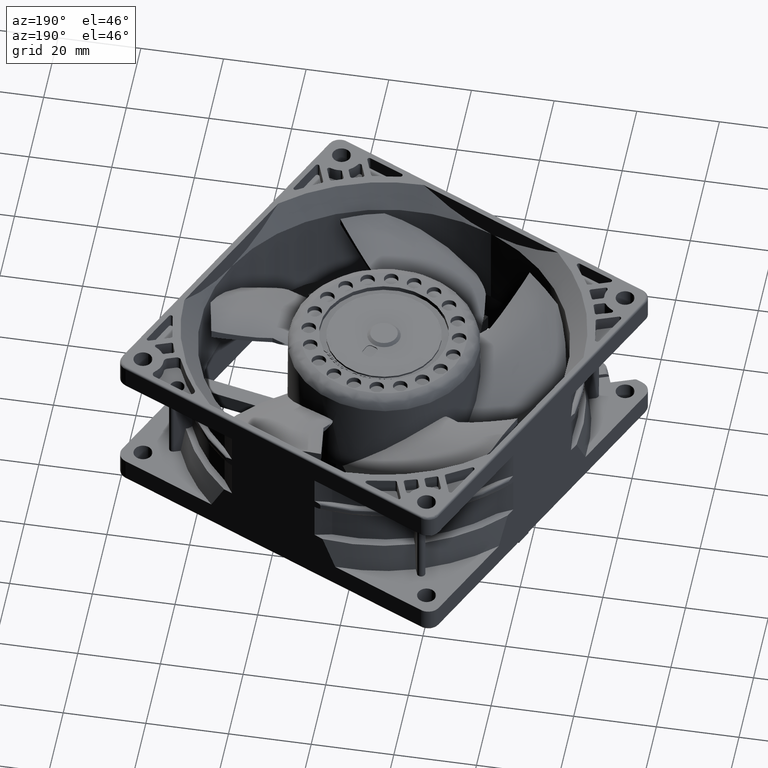
[diagram: clean part render]
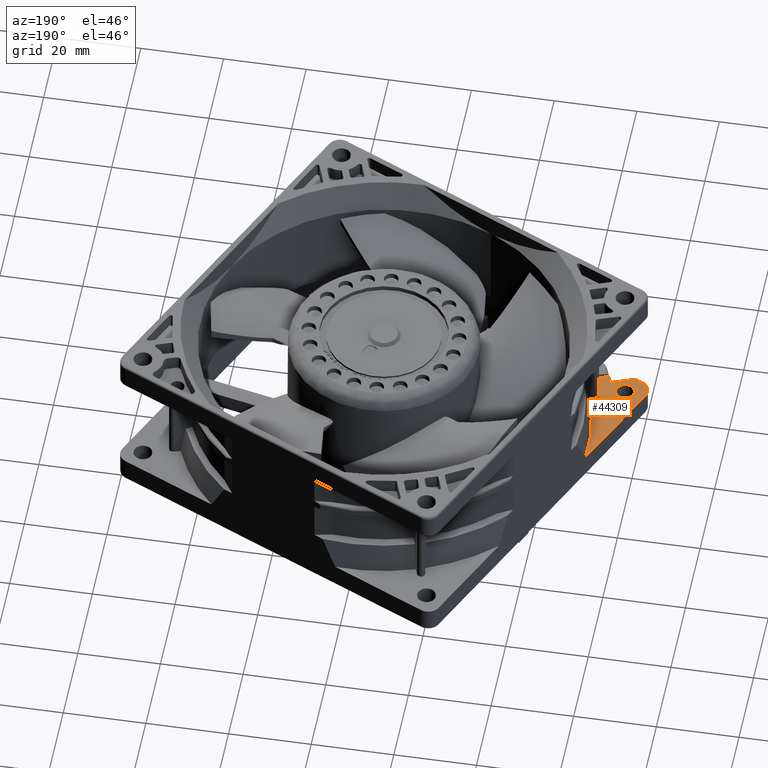
[diagram: same view with one face highlighted and labeled with its STEP entity id]
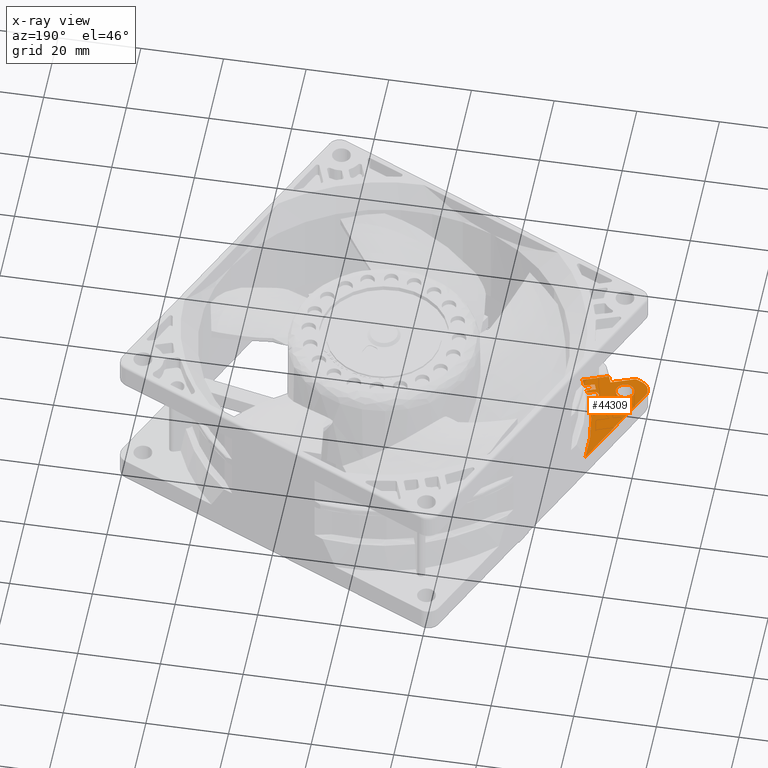
[diagram: x-ray of the same camera — body ghosted, the highlighted face saturated]
A machine part, auxiliary view. The second image highlights one B-rep face of the part: STEP entity #44309.
The next image is the same camera in x-ray: the body ghosted, the highlighted face saturated — about 1% of this face is hidden behind the body in this view.
In plain terms, the highlighted planar face has unit normal (0, 0, 1).
Its self-contained STEP definition (entity closure, byte-faithful):
#327 = CARTESIAN_POINT ( 'NONE',  ( -40.65698632742802900, 43.42270163197492400, -4.299999999999999800 ) ) ;
#393 = CARTESIAN_POINT ( 'NONE',  ( -43.50000000000002100, 40.96370636803558800, -4.300000000000000700 ) ) ;
#469 = DIRECTION ( 'NONE',  ( -0.7071067811865474600, 0.7071067811865474600, 0.0000000000000000000 ) ) ;
#1068 = CARTESIAN_POINT ( 'NONE',  ( -37.06248292005069800, 36.13130577142670300, -4.300000000000000700 ) ) ;
#1269 = DIRECTION ( 'NONE',  ( -0.7071067811865474600, 0.7071067811865474600, -0.0000000000000000000 ) ) ;
#1486 = CARTESIAN_POINT ( 'NONE',  ( -36.47541849607772200, 36.97334219218834100, -4.300000000000000700 ) ) ;
#1627 = DIRECTION ( 'NONE',  ( 1.000000000000000000, 0.0000000000000000000, -0.0000000000000000000 ) ) ;
#2131 = LINE ( 'NONE', #19176, #54172 ) ;
#2133 = CARTESIAN_POINT ( 'NONE',  ( -35.67984052602593400, 36.98648522344735300, -4.300000000000000700 ) ) ;
#2937 = CARTESIAN_POINT ( 'NONE',  ( -18.00794557342019100, 46.00000000000046900, -4.299999999999917200 ) ) ;
#3057 = CARTESIAN_POINT ( 'NONE',  ( -35.83838764700004700, 33.99979646609399700, -4.299999999999999800 ) ) ;
#3494 = CARTESIAN_POINT ( 'NONE',  ( -39.00000000000000000, 41.25000000000000000, -4.300000000000000700 ) ) ;
#3709 = CARTESIAN_POINT ( 'NONE',  ( -39.76869423844276200, 39.54927273352256400, -4.300000000000000700 ) ) ;
#3927 = CARTESIAN_POINT ( 'NONE',  ( -40.38577955338698900, 39.17249978850038900, -4.299999999999998900 ) ) ;
#4143 = CARTESIAN_POINT ( 'NONE',  ( -40.35018107119633200, 39.18763805373939100, -4.299999999999999800 ) ) ;
#4498 = VECTOR ( 'NONE', #5449, 1000.000000000000000 ) ;
#4566 = CARTESIAN_POINT ( 'NONE',  ( -43.44734122579683300, 40.68763533586417200, -4.299999999999999800 ) ) ;
#4943 = CARTESIAN_POINT ( 'NONE',  ( -39.21096025094887200, 42.20280778418595700, -4.299999999999998900 ) ) ;
#5198 = VECTOR ( 'NONE', #15477, 1000.000000000000000 ) ;
#5449 = DIRECTION ( 'NONE',  ( 0.7071067811865480200, -0.7071067811865470200, 0.0000000000000000000 ) ) ;
#5698 = VECTOR ( 'NONE', #469, 1000.000000000000100 ) ;
#5762 = EDGE_CURVE ( 'NONE', #60114, #59098, #22996, .T. ) ;
#5786 = DIRECTION ( 'NONE',  ( 0.7071067811873901200, -0.7071067811857048000, 0.0000000000000000000 ) ) ;
#5883 = CARTESIAN_POINT ( 'NONE',  ( -43.07522476927000100, 35.29705017621999700, -4.299999999999999800 ) ) ;
#5981 = CARTESIAN_POINT ( 'NONE',  ( -46.00000000000000000, 41.25735931284599900, -4.299999999999999800 ) ) ;
#6076 = CARTESIAN_POINT ( 'NONE',  ( -43.50000000000000700, 41.25000000000000000, -4.300000000000000700 ) ) ;
#6109 = CARTESIAN_POINT ( 'NONE',  ( -36.96722371633191500, 35.63627259269215800, -4.299999999999998900 ) ) ;
#6312 = CARTESIAN_POINT ( 'NONE',  ( -36.93160146508878900, 35.56600075514445800, -4.299999999999998900 ) ) ;
#6381 = CARTESIAN_POINT ( 'NONE',  ( -38.53731957467000100, 30.75914498162000800, -4.299999999999999800 ) ) ;
#6532 = CARTESIAN_POINT ( 'NONE',  ( -36.97334219218755900, 35.64947318495892100, -4.299999999999999800 ) ) ;
#7079 = EDGE_CURVE ( 'NONE', #31074, #15833, #59552, .T. ) ;
#7350 = ORIENTED_EDGE ( 'NONE', *, *, #55067, .T. ) ;
#7659 = CARTESIAN_POINT ( 'NONE',  ( -36.24820245162078400, 33.56119668311071500, -4.300000000021840100 ) ) ;
#7827 = CARTESIAN_POINT ( 'NONE',  ( -35.69711799296939600, 36.99348635882662300, -4.300000000000000700 ) ) ;
#8991 = CARTESIAN_POINT ( 'NONE',  ( -40.68746488089151100, 39.05272630102851400, -4.299999999999999800 ) ) ;
#9207 = CARTESIAN_POINT ( 'NONE',  ( -42.06017889792491400, 39.15084153429761900, -4.299999999999998900 ) ) ;
#9461 = EDGE_CURVE ( 'NONE', #39057, #35727, #41671, .T. ) ;
#9531 = DIRECTION ( 'NONE',  ( 1.000000000000000000, 0.0000000000000000000, -0.0000000000000000000 ) ) ;
#9717 = CARTESIAN_POINT ( 'NONE',  ( -35.63049510316000100, 34.21628154079000000, -4.299999999999999800 ) ) ;
#9998 = CARTESIAN_POINT ( 'NONE',  ( -39.17249978850128400, 42.11422044661440400, -4.299999999999998000 ) ) ;
#10374 = B_SPLINE_CURVE_WITH_KNOTS ( 'NONE', 3,
 ( #57729, #53309, #42492, #27618, #12276, #62999 ),
 .UNSPECIFIED., .F., .F.,
 ( 4, 2, 4 ),
 ( 0.0000000000000000000, 0.5000000000000000000, 1.000000000000000000 ),
 .UNSPECIFIED. ) ;
#10720 = EDGE_LOOP ( 'NONE', ( #36525, #35402 ) ) ;
#10920 = CARTESIAN_POINT ( 'NONE',  ( -46.00000000000000000, 0.0000000000000000000, -4.299999999999999800 ) ) ;
#10954 = CARTESIAN_POINT ( 'NONE',  ( -37.02222230184289500, 36.34727590955004900, -4.299999999999999800 ) ) ;
#11160 = CARTESIAN_POINT ( 'NONE',  ( -36.51705212994630000, 36.95331123229713200, -4.299999999999999800 ) ) ;
#11300 = ORIENTED_EDGE ( 'NONE', *, *, #33956, .T. ) ;
#11504 = CARTESIAN_POINT ( 'NONE',  ( -45.85355339062956400, 40.90380592232043000, -4.299999999999998000 ) ) ;
#11583 = CARTESIAN_POINT ( 'NONE',  ( -36.33326072356845800, 37.03495192913157300, -4.299999999999998900 ) ) ;
#12149 = CARTESIAN_POINT ( 'NONE',  ( -45.94611345180693000, 40.99636598350300400, -4.299999999999998000 ) ) ;
#12276 = CARTESIAN_POINT ( 'NONE',  ( -21.02323203619905100, 44.81958446717408200, -4.299999999999999800 ) ) ;
#12395 = EDGE_CURVE ( 'NONE', #29411, #62073, #37453, .T. ) ;
#12452 = CARTESIAN_POINT ( 'NONE',  ( -35.77761577148272900, 37.02222230183901500, -4.300000000000000700 ) ) ;
#12825 = EDGE_CURVE ( 'NONE', #59098, #44781, #13812, .T. ) ;
#13238 = VECTOR ( 'NONE', #25047, 1000.000000000000100 ) ;
#13357 = CARTESIAN_POINT ( 'NONE',  ( -42.95072726647271100, 39.76869423843502500, -4.299999999999998900 ) ) ;
#13456 = VECTOR ( 'NONE', #23087, 1000.000000000000100 ) ;
#13508 = EDGE_CURVE ( 'NONE', #59210, #39057, #31880, .T. ) ;
#13790 = CARTESIAN_POINT ( 'NONE',  ( -39.94630475567156900, 39.40434079945168100, -4.300000000000000700 ) ) ;
#13812 = LINE ( 'NONE', #10920, #5198 ) ;
#14003 = CARTESIAN_POINT ( 'NONE',  ( -40.96423338044603900, 39.00006736241464000, -4.299999999999998900 ) ) ;
#14094 = VERTEX_POINT ( 'NONE', #47350 ) ;
#14206 = CARTESIAN_POINT ( 'NONE',  ( -42.62151624006377700, 39.43964075012078000, -4.299999999999999800 ) ) ;
#14574 = CARTESIAN_POINT ( 'NONE',  ( -43.48025295967380500, 41.60372141378291400, -4.299999999999999800 ) ) ;
#14784 = CARTESIAN_POINT ( 'NONE',  ( -40.45512170747485900, 43.35499082977217700, -4.300000000000000700 ) ) ;
#14972 = CARTESIAN_POINT ( 'NONE',  ( -45.61939766238741400, 44.51540945880800100, -4.299999999999999800 ) ) ;
#15221 = CARTESIAN_POINT ( 'NONE',  ( -43.50000000000000700, 41.25000000000000000, -4.300000000000000700 ) ) ;
#15287 = EDGE_CURVE ( 'NONE', #20888, #14094, #40447, .T. ) ;
#15376 = FACE_BOUND ( 'NONE', #10720, .T. ) ;
#15422 = LINE ( 'NONE', #5883, #4498 ) ;
#15477 = DIRECTION ( 'NONE',  ( 0.0000000000000000000, -1.000000000000000000, -0.0000000000000000000 ) ) ;
#15694 = LINE ( 'NONE', #29068, #35435 ) ;
#15833 = VERTEX_POINT ( 'NONE', #36957 ) ;
#16366 = CARTESIAN_POINT ( 'NONE',  ( -36.95334192963881000, 35.60791038187174700, -4.299999999999998900 ) ) ;
#16975 = CARTESIAN_POINT ( 'NONE',  ( -42.99999999921499900, 46.00000000000000000, -4.299999999999999800 ) ) ;
#18239 = ORIENTED_EDGE ( 'NONE', *, *, #37626, .F. ) ;
#18380 = CARTESIAN_POINT ( 'NONE',  ( -43.32750021149848200, 40.38577955338512700, -4.299999999999999800 ) ) ;
#19145 = VERTEX_POINT ( 'NONE', #58766 ) ;
#19176 = CARTESIAN_POINT ( 'NONE',  ( -38.53731957467000100, 30.75914498162000400, -4.299999999999999800 ) ) ;
#19232 = ORIENTED_EDGE ( 'NONE', *, *, #7079, .T. ) ;
#19240 = CARTESIAN_POINT ( 'NONE',  ( -43.09565920054005500, 39.94630475565801900, -4.299999999999999800 ) ) ;
#19339 = CARTESIAN_POINT ( 'NONE',  ( -46.00000000000000000, 42.99999999981250200, -4.299999999999999800 ) ) ;
#19734 = ORIENTED_EDGE ( 'NONE', *, *, #12825, .T. ) ;
#19811 = CARTESIAN_POINT ( 'NONE',  ( -39.40434079945817600, 42.55369524433847100, -4.299999999999998900 ) ) ;
#20233 = CARTESIAN_POINT ( 'NONE',  ( -35.63049510316980700, 34.21628154079954200, -4.300000000020657100 ) ) ;
#20242 = CARTESIAN_POINT ( 'NONE',  ( -42.55369524435609900, 43.09565920053117300, -4.299999999999998900 ) ) ;
#20308 = ORIENTED_EDGE ( 'NONE', *, *, #48046, .T. ) ;
#20342 = ORIENTED_EDGE ( 'NONE', *, *, #23934, .F. ) ;
#20460 = CARTESIAN_POINT ( 'NONE',  ( -43.38522032810401200, 41.96120879275052600, -4.299999999999999800 ) ) ;
#20888 = VERTEX_POINT ( 'NONE', #6076 ) ;
#21413 = CARTESIAN_POINT ( 'NONE',  ( -36.55900110710754100, 36.93155371366806600, -4.299999999999998900 ) ) ;
#21778 = CARTESIAN_POINT ( 'NONE',  ( 0.0000000000000000000, 0.0000000000000000000, -4.299999999999999800 ) ) ;
#21869 = ORIENTED_EDGE ( 'NONE', *, *, #9461, .T. ) ;
#22718 = CARTESIAN_POINT ( 'NONE',  ( -35.44538241774174700, 36.85959598011147900, -4.299999999999998900 ) ) ;
#22996 = B_SPLINE_CURVE_WITH_KNOTS ( 'NONE', 3,
 ( #25275, #65293, #25718, #60893, #30376, #50993, #14972, #24840, #40349, #45679 ),
 .UNSPECIFIED., .F., .F.,
 ( 4, 2, 2, 2, 4 ),
 ( 0.0000000000000000000, 0.2500000000000000000, 0.5000000000000000000, 0.7500000000000000000, 1.000000000000000000 ),
 .UNSPECIFIED. ) ;
#23087 = DIRECTION ( 'NONE',  ( -0.7071067811865474600, -0.7071067811865474600, -0.0000000000000000000 ) ) ;
#23684 = AXIS2_PLACEMENT_3D ( 'NONE', #21778, #26618, #1627 ) ;
#23934 = EDGE_CURVE ( 'NONE', #60114, #54771, #62463, .T. ) ;
#23970 = VERTEX_POINT ( 'NONE', #25270 ) ;
#24000 = DIRECTION ( 'NONE',  ( 0.7071067811865458000, 0.7071067811865492400, 0.0000000000000000000 ) ) ;
#24074 = CARTESIAN_POINT ( 'NONE',  ( -41.84301367258402800, 39.07729836802629100, -4.299999999999998900 ) ) ;
#24283 = CARTESIAN_POINT ( 'NONE',  ( -43.28903974905038200, 40.29719221581252200, -4.299999999999999800 ) ) ;
#24610 = CARTESIAN_POINT ( 'NONE',  ( -41.66101120690000000, 36.71126373860000300, -4.299999999999999800 ) ) ;
#24840 = CARTESIAN_POINT ( 'NONE',  ( -45.92387953247747800, 43.78069113576825100, -4.300000000000000700 ) ) ;
#24868 = CARTESIAN_POINT ( 'NONE',  ( -42.32358637139379500, 43.23031769345527000, -4.299999999999999800 ) ) ;
#25047 = DIRECTION ( 'NONE',  ( -0.7071067811840477900, -0.7071067811890472400, 0.0000000000000000000 ) ) ;
#25092 = CARTESIAN_POINT ( 'NONE',  ( -39.16455866938494500, 42.09482862353792900, -4.299999999999999800 ) ) ;
#25270 = CARTESIAN_POINT ( 'NONE',  ( -37.12310601229000200, 32.17335854399999600, -4.299999999999999800 ) ) ;
#25275 = CARTESIAN_POINT ( 'NONE',  ( -42.99999999921499900, 46.00000000000000000, -4.299999999999999800 ) ) ;
#25533 = CARTESIAN_POINT ( 'NONE',  ( -41.10711669023222500, 43.50003368120826500, -4.300000000000000700 ) ) ;
#25718 = CARTESIAN_POINT ( 'NONE',  ( -43.78080031037499300, 45.92368276822833200, -4.299999999999999800 ) ) ;
#25828 = CARTESIAN_POINT ( 'NONE',  ( -37.06237168145201400, 35.92472597868960100, -4.299999999999999800 ) ) ;
#26041 = CARTESIAN_POINT ( 'NONE',  ( -36.92988047883426400, 36.57603099792329000, -4.299999999999998900 ) ) ;
#26479 = CARTESIAN_POINT ( 'NONE',  ( -36.48865843877875600, 36.96720666225352400, -4.300000000000000700 ) ) ;
#26618 = DIRECTION ( 'NONE',  ( 0.0000000000000000000, 0.0000000000000000000, 1.000000000000000000 ) ) ;
#26687 = CARTESIAN_POINT ( 'NONE',  ( -36.76955262170000100, 35.35533905932999900, -4.299999999914722300 ) ) ;
#27618 = CARTESIAN_POINT ( 'NONE',  ( -23.89454124314109900, 43.35693152812982700, -4.299999999999998900 ) ) ;
#27797 = CARTESIAN_POINT ( 'NONE',  ( -36.20016570234852800, 37.06237168145110400, -4.299999999999998000 ) ) ;
#28725 = CARTESIAN_POINT ( 'NONE',  ( -39.27213293560828300, 40.13323972604293000, -4.300000000000000700 ) ) ;
#28944 = CARTESIAN_POINT ( 'NONE',  ( -39.14501732739549300, 40.45510108906387400, -4.300000000000001600 ) ) ;
#29068 = CARTESIAN_POINT ( 'NONE',  ( -37.12310601229000200, 32.17335854400000300, -4.299999999999999800 ) ) ;
#29163 = CARTESIAN_POINT ( 'NONE',  ( -42.01142986837593400, 39.13265990226011600, -4.299999999999999800 ) ) ;
#29390 = CARTESIAN_POINT ( 'NONE',  ( -43.31236194625846300, 40.35018107119276500, -4.300000000000000700 ) ) ;
#29411 = VERTEX_POINT ( 'NONE', #60570 ) ;
#29601 = CARTESIAN_POINT ( 'NONE',  ( -43.50000000000000700, 41.25000000000000000, -4.300000000000000700 ) ) ;
#29750 = CARTESIAN_POINT ( 'NONE',  ( -43.06035924986310400, 42.62151624007390900, -4.299999999999998900 ) ) ;
#29969 = CARTESIAN_POINT ( 'NONE',  ( -43.42265742538909000, 41.84312541104073800, -4.299999999999999800 ) ) ;
#30197 = CARTESIAN_POINT ( 'NONE',  ( -40.89642757084207900, 43.48031190178824800, -4.299999999999999800 ) ) ;
#30376 = CARTESIAN_POINT ( 'NONE',  ( -44.84021264744276200, 45.40233282562658700, -4.299999999999999800 ) ) ;
#30634 = CARTESIAN_POINT ( 'NONE',  ( -39.26968230653675800, 42.32358637138057800, -4.299999999999999800 ) ) ;
#30947 = CARTESIAN_POINT ( 'NONE',  ( -36.81444817261296300, 35.40023461024232200, -4.299999999999998900 ) ) ;
#31023 = ORIENTED_EDGE ( 'NONE', *, *, #61540, .T. ) ;
#31074 = VERTEX_POINT ( 'NONE', #34855 ) ;
#31591 = CARTESIAN_POINT ( 'NONE',  ( -36.99348635883124800, 36.42777368806388000, -4.300000000000001600 ) ) ;
#31880 = LINE ( 'NONE', #41674, #51717 ) ;
#32184 = EDGE_CURVE ( 'NONE', #29411, #40613, #37927, .T. ) ;
#32235 = CARTESIAN_POINT ( 'NONE',  ( -35.72921721538735100, 37.00549623977656200, -4.299999999999999800 ) ) ;
#32376 = VERTEX_POINT ( 'NONE', #49468 ) ;
#32650 = ORIENTED_EDGE ( 'NONE', *, *, #5762, .T. ) ;
#33242 = CARTESIAN_POINT ( 'NONE',  ( -37.83021279348000100, 35.14320702497000300, -4.299999999999999800 ) ) ;
#33708 = EDGE_LOOP ( 'NONE', ( #21869, #31023, #46233, #11300, #46639, #62036, #34801, #7350, #19232, #42157, #20308, #20342, #32650, #19734, #18239, #49031 ) ) ;
#33807 = CARTESIAN_POINT ( 'NONE',  ( -39.43964075010532600, 39.87848375994570200, -4.299999999999999800 ) ) ;
#33956 = EDGE_CURVE ( 'NONE', #23970, #19145, #15694, .T. ) ;
#34086 = VECTOR ( 'NONE', #54346, 1000.000000000000100 ) ;
#34801 = ORIENTED_EDGE ( 'NONE', *, *, #12395, .T. ) ;
#34830 = CARTESIAN_POINT ( 'NONE',  ( -42.09481797010074200, 43.33544555104176500, -4.299999999999998900 ) ) ;
#34855 = CARTESIAN_POINT ( 'NONE',  ( -36.76955262170000100, 35.35533905932999900, -4.299999999914722300 ) ) ;
#35017 = CARTESIAN_POINT ( 'NONE',  ( 46.00000000000000000, 46.00000000000000000, -4.299999999999999800 ) ) ;
#35052 = CARTESIAN_POINT ( 'NONE',  ( -40.13323972606339400, 43.22786706440818000, -4.300000000000000700 ) ) ;
#35402 = ORIENTED_EDGE ( 'NONE', *, *, #53797, .T. ) ;
#35435 = VECTOR ( 'NONE', #63998, 1000.000000000000000 ) ;
#35506 = CARTESIAN_POINT ( 'NONE',  ( -39.54927273352627300, 42.73130576156298600, -4.300000000000000700 ) ) ;
#35574 = VECTOR ( 'NONE', #9531, 1000.000000000000000 ) ;
#35727 = VERTEX_POINT ( 'NONE', #61976 ) ;
#36525 = ORIENTED_EDGE ( 'NONE', *, *, #15287, .T. ) ;
#36614 = CARTESIAN_POINT ( 'NONE',  ( -39.00000000000000000, 41.25000000000000000, -4.300000000000000700 ) ) ;
#36686 = CARTESIAN_POINT ( 'NONE',  ( -36.98647612347979700, 36.44507221177502000, -4.299999999999999800 ) ) ;
#36805 = CARTESIAN_POINT ( 'NONE',  ( -46.00000000000000000, 41.12645961898277800, -4.299999999999998000 ) ) ;
#36957 = CARTESIAN_POINT ( 'NONE',  ( -35.35533905932999900, 36.76955262169999400, -4.300000000056499500 ) ) ;
#37276 = EDGE_CURVE ( 'NONE', #53312, #23970, #2131, .T. ) ;
#37453 = B_SPLINE_CURVE_WITH_KNOTS ( 'NONE', 3,
 ( #7659, #52877, #3057, #42944 ),
 .UNSPECIFIED., .F., .F.,
 ( 4, 4 ),
 ( 0.0000000000000000000, 1.000000000000000000 ),
 .UNSPECIFIED. ) ;
#37556 = CARTESIAN_POINT ( 'NONE',  ( -35.99358590960739700, 37.06248292004848800, -4.300000000000001600 ) ) ;
#37626 = EDGE_CURVE ( 'NONE', #59210, #44781, #54215, .T. ) ;
#37927 = LINE ( 'NONE', #52170, #39499 ) ;
#38706 = CARTESIAN_POINT ( 'NONE',  ( -41.60357242917399400, 39.01968809821339300, -4.300000000000000700 ) ) ;
#38928 = CARTESIAN_POINT ( 'NONE',  ( -39.07734257461092400, 40.65687458894274200, -4.299999999999999800 ) ) ;
#39057 = VERTEX_POINT ( 'NONE', #57111 ) ;
#39135 = CARTESIAN_POINT ( 'NONE',  ( -40.40518202989793700, 39.16455444895835600, -4.299999999999998900 ) ) ;
#39345 = CARTESIAN_POINT ( 'NONE',  ( -42.04487829252738600, 39.14500917022810000, -4.299999999999999800 ) ) ;
#39499 = VECTOR ( 'NONE', #1269, 1000.000000000000100 ) ;
#39933 = CARTESIAN_POINT ( 'NONE',  ( -40.48857013162831500, 43.36734009774033900, -4.299999999999999800 ) ) ;
#40160 = CARTESIAN_POINT ( 'NONE',  ( -39.18763805374111100, 42.14981892880633300, -4.299999999999999800 ) ) ;
#40349 = CARTESIAN_POINT ( 'NONE',  ( -46.00000000000000000, 43.39800770327219900, -4.299999999999999800 ) ) ;
#40447 = B_SPLINE_CURVE_WITH_KNOTS ( 'NONE', 3,
 ( #15221, #60264, #14574, #29969, #20460, #50352, #54986, #49909, #60030, #29750, #45716, #20242, #24868, #50805, #65103, #55201, #34830, #65323, #55651, #25533, #30197, #327, #55427, #39933, #14784, #60928, #35052, #50131, #35506, #19811, #30634, #4943, #40160, #9998, #25092, #45280, #60478, #36614 ),
 .UNSPECIFIED., .F., .F.,
 ( 4, 1, 1, 1, 2, 2, 2, 1, 1, 1, 2, 2, 2, 1, 1, 1, 2, 2, 2, 1, 1, 1, 2, 2, 4 ),
 ( 0.0000000000000000000, 0.06250000000000224800, 0.09375000000000215100, 0.1093750000000035700, 0.1171875000000047900, 0.1250000000000060000, 0.2500000000000101000, 0.3125000000000121600, 0.3437500000000131600, 0.3593750000000136600, 0.3671875000000139300, 0.3750000000000142100, 0.4999999999999980000, 0.5624999999999883400, 0.5937499999999847900, 0.6093749999999830100, 0.6171874999999821300, 0.6249999999999811300, 0.7499999999999718000, 0.8124999999999671400, 0.8437499999999640300, 0.8593749999999612500, 0.8671874999999611400, 0.8749999999999609200, 1.000000000000000000 ),
 .UNSPECIFIED. ) ;
#40613 = VERTEX_POINT ( 'NONE', #61859 ) ;
#41352 = CARTESIAN_POINT ( 'NONE',  ( -36.72474101838768200, 36.81441179057907900, -4.299999999999999800 ) ) ;
#41671 = LINE ( 'NONE', #24610, #13238 ) ;
#41674 = CARTESIAN_POINT ( 'NONE',  ( -45.85355339065999700, 40.90380592235000300, -4.299999999999999800 ) ) ;
#41905 = CARTESIAN_POINT ( 'NONE',  ( -46.00000000000000000, 41.25735931284599900, -4.299999999999999800 ) ) ;
#42157 = ORIENTED_EDGE ( 'NONE', *, *, #65185, .T. ) ;
#42492 = CARTESIAN_POINT ( 'NONE',  ( -29.34920514535123800, 39.86715083760471100, -4.299999999999999800 ) ) ;
#42944 = CARTESIAN_POINT ( 'NONE',  ( -35.63049510316980700, 34.21628154079954200, -4.300000000020657100 ) ) ;
#43607 = CARTESIAN_POINT ( 'NONE',  ( -39.11477967189599500, 40.53879120723986100, -4.300000000000001600 ) ) ;
#44043 = CARTESIAN_POINT ( 'NONE',  ( -39.13267542719162900, 40.48853089013645200, -4.300000000000000700 ) ) ;
#44267 = CARTESIAN_POINT ( 'NONE',  ( -39.01974704032619500, 40.89627858619504500, -4.299999999999999800 ) ) ;
#44309 = ADVANCED_FACE ( 'NONE', ( #15376, #44694 ), #56949, .T. ) ;
#44480 = CARTESIAN_POINT ( 'NONE',  ( -42.36676027394305800, 39.27213293560026100, -4.299999999999999800 ) ) ;
#44694 = FACE_OUTER_BOUND ( 'NONE', #33708, .T. ) ;
#44781 = VERTEX_POINT ( 'NONE', #5981 ) ;
#45090 = B_SPLINE_CURVE_WITH_KNOTS ( 'NONE', 3,
 ( #3494, #59665, #44267, #38928, #43607, #44043, #28944, #53969, #28725, #33807, #3709, #13790, #49127, #53752, #4143, #3927, #39135, #8991, #14003, #54397, #38706, #24074, #48676, #29163, #39345, #9207, #44480, #14206, #13357, #19240, #54607, #24283, #29390, #18380, #55718, #4566, #393, #29601 ),
 .UNSPECIFIED., .F., .F.,
 ( 4, 1, 1, 1, 2, 2, 2, 1, 1, 1, 2, 2, 2, 1, 1, 1, 2, 2, 2, 1, 1, 1, 2, 2, 4 ),
 ( 0.0000000000000000000, 0.06249999999998233400, 0.09374999999997529800, 0.1093749999999707500, 0.1171874999999679700, 0.1249999999999651900, 0.2499999999999207900, 0.3124999999998985800, 0.3437499999998894800, 0.3593749999998861500, 0.3671874999998852000, 0.3749999999998843100, 0.4999999999999090700, 0.5624999999999215100, 0.5937499999999291700, 0.6093749999999350500, 0.6171874999999383800, 0.6249999999999417100, 0.7499999999999685800, 0.8124999999999821300, 0.8437499999999896700, 0.8593749999999940000, 0.8671874999999955600, 0.8749999999999971100, 1.000000000000000000 ),
 .UNSPECIFIED. ) ;
#45280 = CARTESIAN_POINT ( 'NONE',  ( -39.05265877420318800, 41.81236466413480500, -4.300000000000000700 ) ) ;
#45679 = CARTESIAN_POINT ( 'NONE',  ( -46.00000000000000000, 42.99999999981250200, -4.299999999999999800 ) ) ;
#45716 = CARTESIAN_POINT ( 'NONE',  ( -42.73130576157306100, 42.95072726646765200, -4.299999999999998900 ) ) ;
#46233 = ORIENTED_EDGE ( 'NONE', *, *, #37276, .T. ) ;
#46639 = ORIENTED_EDGE ( 'NONE', *, *, #50069, .F. ) ;
#47350 = CARTESIAN_POINT ( 'NONE',  ( -39.00000000000000000, 41.25000000000000000, -4.300000000000000700 ) ) ;
#47772 = CARTESIAN_POINT ( 'NONE',  ( -35.89229379298444700, 37.05222846444759500, -4.299999999999999800 ) ) ;
#48046 = EDGE_CURVE ( 'NONE', #32376, #54771, #10374, .T. ) ;
#48241 = LINE ( 'NONE', #33242, #13456 ) ;
#48676 = CARTESIAN_POINT ( 'NONE',  ( -41.96114361198412000, 39.11475388472165100, -4.299999999999999800 ) ) ;
#49031 = ORIENTED_EDGE ( 'NONE', *, *, #13508, .T. ) ;
#49127 = CARTESIAN_POINT ( 'NONE',  ( -40.17641362862696800, 39.26968230653187700, -4.299999999999999800 ) ) ;
#49468 = CARTESIAN_POINT ( 'NONE',  ( -34.21628154079157000, 35.63049510316140100, -4.299999999910339100 ) ) ;
#49639 = CARTESIAN_POINT ( 'NONE',  ( -45.85355339062956400, 40.90380592232043000, -4.299999999999998000 ) ) ;
#49824 = LINE ( 'NONE', #9717, #5698 ) ;
#49909 = CARTESIAN_POINT ( 'NONE',  ( -43.34915846570128700, 42.06017889792641300, -4.299999999999999800 ) ) ;
#50069 = EDGE_CURVE ( 'NONE', #40613, #19145, #48241, .T. ) ;
#50131 = CARTESIAN_POINT ( 'NONE',  ( -39.87848375993825600, 43.06035924988324800, -4.299999999999999800 ) ) ;
#50352 = CARTESIAN_POINT ( 'NONE',  ( -43.36732457280841400, 42.01146910985774200, -4.300000000000000700 ) ) ;
#50805 = CARTESIAN_POINT ( 'NONE',  ( -42.20280778419368100, 43.28903974904649500, -4.300000000000000700 ) ) ;
#50993 = CARTESIAN_POINT ( 'NONE',  ( -45.40242803892699200, 44.84030786224224800, -4.300000000000001600 ) ) ;
#51717 = VECTOR ( 'NONE', #5786, 1000.000000000000100 ) ;
#51756 = CARTESIAN_POINT ( 'NONE',  ( -37.03495192913163700, 35.79163095747148300, -4.299999999999999800 ) ) ;
#52170 = CARTESIAN_POINT ( 'NONE',  ( -36.69884194358000000, 34.01183617507000200, -4.299999999999998900 ) ) ;
#52877 = CARTESIAN_POINT ( 'NONE',  ( -36.04429009648671900, 33.78143484686733400, -4.299999999999999800 ) ) ;
#53309 = CARTESIAN_POINT ( 'NONE',  ( -31.88097751565681300, 37.87310834151096400, -4.299999999999999800 ) ) ;
#53312 = VERTEX_POINT ( 'NONE', #6381 ) ;
#53752 = CARTESIAN_POINT ( 'NONE',  ( -40.29719221581845500, 39.21096025094603000, -4.299999999999999800 ) ) ;
#53797 = EDGE_CURVE ( 'NONE', #14094, #20888, #45090, .T. ) ;
#53913 = LINE ( 'NONE', #60283, #34086 ) ;
#53969 = CARTESIAN_POINT ( 'NONE',  ( -39.15084153429713600, 40.43982110207597500, -4.299999999999999800 ) ) ;
#54172 = VECTOR ( 'NONE', #24000, 1000.000000000000000 ) ;
#54215 = B_SPLINE_CURVE_WITH_KNOTS ( 'NONE', 3,
 ( #11504, #12149, #36805, #41905 ),
 .UNSPECIFIED., .F., .F.,
 ( 4, 4 ),
 ( 0.0000000000000000000, 1.000000000000000000 ),
 .UNSPECIFIED. ) ;
#54346 = DIRECTION ( 'NONE',  ( 0.7071067811865474600, -0.7071067811865474600, 0.0000000000000000000 ) ) ;
#54397 = CARTESIAN_POINT ( 'NONE',  ( -41.39288330977699100, 38.99996631879269400, -4.300000000000001600 ) ) ;
#54607 = CARTESIAN_POINT ( 'NONE',  ( -43.23031769346194200, 40.17641362861681400, -4.299999999999999800 ) ) ;
#54771 = VERTEX_POINT ( 'NONE', #2937 ) ;
#54986 = CARTESIAN_POINT ( 'NONE',  ( -43.35498267260452800, 42.04489891093310700, -4.299999999999999800 ) ) ;
#55067 = EDGE_CURVE ( 'NONE', #62073, #31074, #49824, .T. ) ;
#55201 = CARTESIAN_POINT ( 'NONE',  ( -42.11422044661684100, 43.32750021149724500, -4.299999999999999800 ) ) ;
#55427 = CARTESIAN_POINT ( 'NONE',  ( -40.53885638802292800, 43.38524611527908800, -4.299999999999998900 ) ) ;
#55651 = CARTESIAN_POINT ( 'NONE',  ( -41.53576661953557900, 43.49993263758350500, -4.299999999999999800 ) ) ;
#55718 = CARTESIAN_POINT ( 'NONE',  ( -43.33544133061509700, 40.40517137646215700, -4.300000000000000700 ) ) ;
#56389 = CARTESIAN_POINT ( 'NONE',  ( -37.00549623978089600, 36.39567446564569800, -4.299999999999999800 ) ) ;
#56802 = CARTESIAN_POINT ( 'NONE',  ( -36.87444922289950700, 35.47264745263730400, -4.299999999999999800 ) ) ;
#56949 = PLANE ( 'NONE',  #23684 ) ;
#57111 = CARTESIAN_POINT ( 'NONE',  ( -41.66101120690166900, 36.71126373859833300, -4.299999999999998900 ) ) ;
#57238 = CARTESIAN_POINT ( 'NONE',  ( -35.54869222897171000, 36.92980767904956700, -4.299999999999998900 ) ) ;
#57729 = CARTESIAN_POINT ( 'NONE',  ( -34.21628154079157000, 35.63049510316140100, -4.299999999910339100 ) ) ;
#58118 = CARTESIAN_POINT ( 'NONE',  ( -35.35533905932999900, 36.76955262169999400, -4.300000000056499500 ) ) ;
#58766 = CARTESIAN_POINT ( 'NONE',  ( -38.96158364337082200, 34.01183617508083000, -4.299999999999999800 ) ) ;
#59098 = VERTEX_POINT ( 'NONE', #19339 ) ;
#59210 = VERTEX_POINT ( 'NONE', #49639 ) ;
#59552 = B_SPLINE_CURVE_WITH_KNOTS ( 'NONE', 3,
 ( #26687, #30947, #56802, #6312, #16366, #6109, #6532, #51756, #25828, #1068, #61222, #10954, #56389, #31591, #36686, #26041, #61436, #41352, #62071, #21413, #11160, #26479, #1486, #11583, #27797, #37556, #47772, #12452, #32235, #7827, #2133, #57238, #22718, #58118 ),
 .UNSPECIFIED., .F., .F.,
 ( 4, 1, 1, 2, 2, 2, 1, 1, 2, 2, 2, 1, 1, 2, 2, 2, 1, 1, 2, 2, 4 ),
 ( 0.0000000000000000000, 0.06249999999998721900, 0.09374999999998565000, 0.1093749999999832100, 0.1249999999999807700, 0.2499999999999926200, 0.3124999999999985600, 0.3437500000000008900, 0.3593750000000010500, 0.3750000000000012200, 0.4999999999999963400, 0.5624999999999890100, 0.5937499999999804600, 0.6093749999999810200, 0.6249999999999814600, 0.7499999999999859000, 0.8124999999999913400, 0.8437499999999903400, 0.8593749999999897900, 0.8749999999999892300, 1.000000000000000000 ),
 .UNSPECIFIED. ) ;
#59665 = CARTESIAN_POINT ( 'NONE',  ( -39.00000000000000000, 41.10703155614818600, -4.299999999999999800 ) ) ;
#60030 = CARTESIAN_POINT ( 'NONE',  ( -43.22786706441751600, 42.36676027391926900, -4.299999999999999800 ) ) ;
#60114 = VERTEX_POINT ( 'NONE', #16975 ) ;
#60264 = CARTESIAN_POINT ( 'NONE',  ( -43.50000000000001400, 41.39296844383923000, -4.300000000000000700 ) ) ;
#60283 = CARTESIAN_POINT ( 'NONE',  ( -35.35533905932999900, 36.76955262170000100, -4.299999999999999800 ) ) ;
#60478 = CARTESIAN_POINT ( 'NONE',  ( -39.00000000000000000, 41.53629363196341000, -4.299999999999998900 ) ) ;
#60570 = CARTESIAN_POINT ( 'NONE',  ( -36.24820245162078400, 33.56119668311071500, -4.300000000021840100 ) ) ;
#60893 = CARTESIAN_POINT ( 'NONE',  ( -44.51530028234657300, 45.61959442744782200, -4.299999999999998900 ) ) ;
#60928 = CARTESIAN_POINT ( 'NONE',  ( -40.43982110207469600, 43.34915846570186200, -4.299999999999999800 ) ) ;
#61222 = CARTESIAN_POINT ( 'NONE',  ( -37.05222846445055000, 36.23259788804839600, -4.300000000000000700 ) ) ;
#61436 = CARTESIAN_POINT ( 'NONE',  ( -36.85917582834867500, 36.67983428394773400, -4.299999999999998900 ) ) ;
#61540 = EDGE_CURVE ( 'NONE', #35727, #53312, #15422, .T. ) ;
#61859 = CARTESIAN_POINT ( 'NONE',  ( -37.83021279348000100, 35.14320702497000300, -4.299999999999999800 ) ) ;
#61976 = CARTESIAN_POINT ( 'NONE',  ( -43.07522476926932600, 35.29705017621930100, -4.299999999999999800 ) ) ;
#62036 = ORIENTED_EDGE ( 'NONE', *, *, #32184, .F. ) ;
#62071 = CARTESIAN_POINT ( 'NONE',  ( -36.65239113668657500, 36.87438555433858800, -4.299999999999998900 ) ) ;
#62073 = VERTEX_POINT ( 'NONE', #20233 ) ;
#62463 = LINE ( 'NONE', #35017, #35574 ) ;
#62999 = CARTESIAN_POINT ( 'NONE',  ( -18.00794557342019100, 46.00000000000046900, -4.299999999999917200 ) ) ;
#63998 = DIRECTION ( 'NONE',  ( -0.7071067811865462400, 0.7071067811865489100, 0.0000000000000000000 ) ) ;
#65103 = CARTESIAN_POINT ( 'NONE',  ( -42.14981892881098000, 43.31236194625611100, -4.299999999999998900 ) ) ;
#65185 = EDGE_CURVE ( 'NONE', #15833, #32376, #53913, .T. ) ;
#65293 = CARTESIAN_POINT ( 'NONE',  ( -43.39764160963679300, 46.00000000014049600, -4.299999999999999800 ) ) ;
#65323 = CARTESIAN_POINT ( 'NONE',  ( -41.81253511912974800, 43.44727369896960300, -4.299999999999998900 ) ) ;